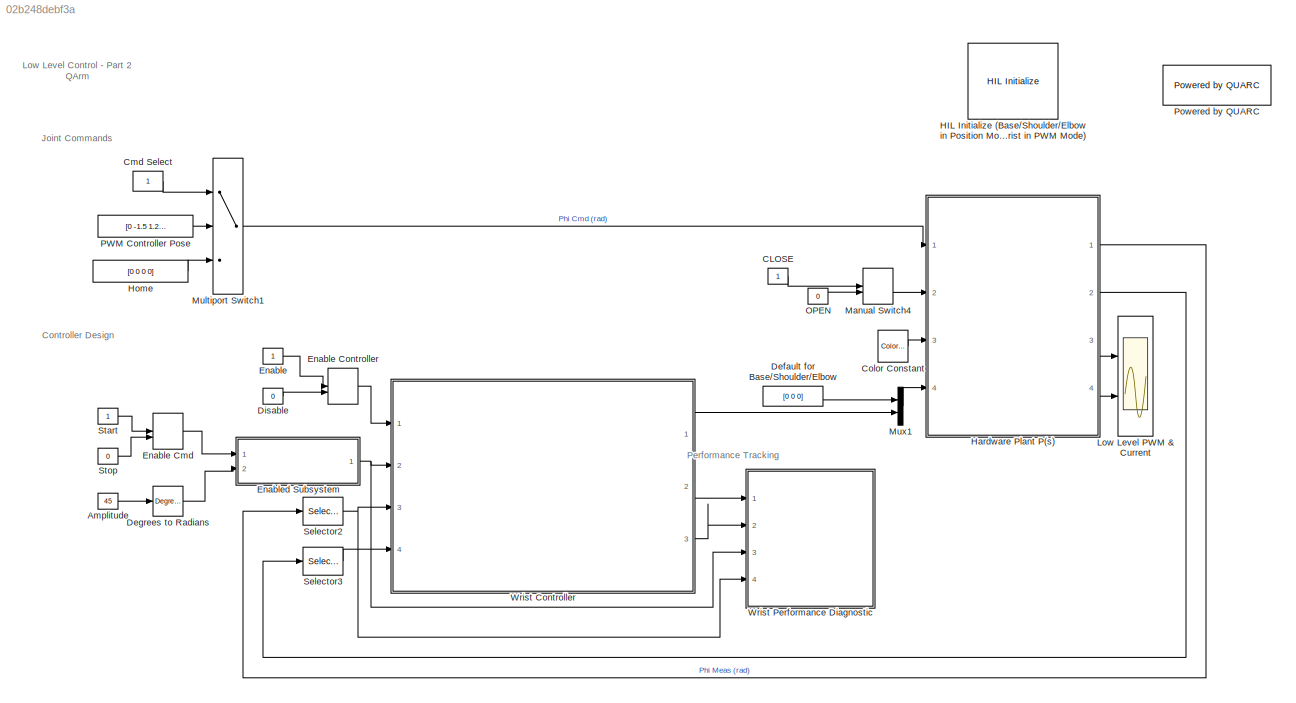
MODEL slx_02b248debf3a
KIND model
CONFIG AbsTol = auto
CONFIG EnableMultiTasking = on
CONFIG FixedStep = 1/500
CONFIG MaxStep = auto
CONFIG MinStep = auto
CONFIG RelTol = 1e-3
CONFIG SampleTimeConstraint = Unconstrained
CONFIG SolverName = ode4
CONFIG StartTime = 0.0
CONFIG StopTime = inf
BLOCK [Constant]  OPEN
  Value = 0
BLOCK [Constant] Amplitude
  Value = 45
BLOCK [Constant] CLOSE 
BLOCK [Constant] Cmd Select
BLOCK [Reference] Color Constant  REF=quarc_library/Sources/Signals/Color Constant
  Ports = [0, 1]
  SourceBlock = quarc_library/Sources/Signals/Color Constant
  SourceProductName = QUARC Targets
  SourceType = Color Constant
BLOCK [Constant] Default for Base//Shoulder//Elbow
  NameLocation = top
  Value = [0 0 0]
BLOCK [Reference] Degrees to Radians  REF=simulink_extras/Transformations/Degrees to
Radians
  Ports = [1, 1]
  SourceBlock = simulink_extras/Transformations/Degrees to\nRadians
  SourceType = DegreesToRadians
BLOCK [Constant] Disable
  Value = 0
BLOCK [Constant] Enable 
BLOCK [ManualSwitch] Enable Cmd
BLOCK [ManualSwitch] Enable Controller
  NameLocation = top
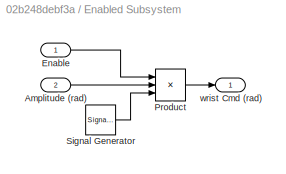
BLOCK [SubSystem] Enabled Subsystem
  Ports = [2, 1]
  TreatAsAtomicUnit = on
BLOCK [Inport] Enabled Subsystem/Amplitude (rad)
  Port = 2
BLOCK [Inport] Enabled Subsystem/Enable
BLOCK [Product] Enabled Subsystem/Product
  Inputs = 3
  Ports = [3, 1]
BLOCK [SignalGenerator] Enabled Subsystem/Signal Generator
  Frequency = 1/10
  Ports = [0, 1]
  WaveForm = square
BLOCK [Outport] Enabled Subsystem/wrist Cmd (rad)
BLOCK [Reference] HIL Initialize (Base//Shoulder//Elbow in Position Mode Wrist in PWM Mode)  REF=quarc_library/Data Acquisition/Generic/Configuration/HIL Initialize
  AttributesFormatString = %<object_name> (%<board_type>-%<board_number>)
  Ports = []
  SourceBlock = quarc_library/Data Acquisition/Generic/Configuration/HIL Initialize
  SourceProductName = QUARC Targets
  SourceType = HIL Initialize
  UserDataPersistent = on
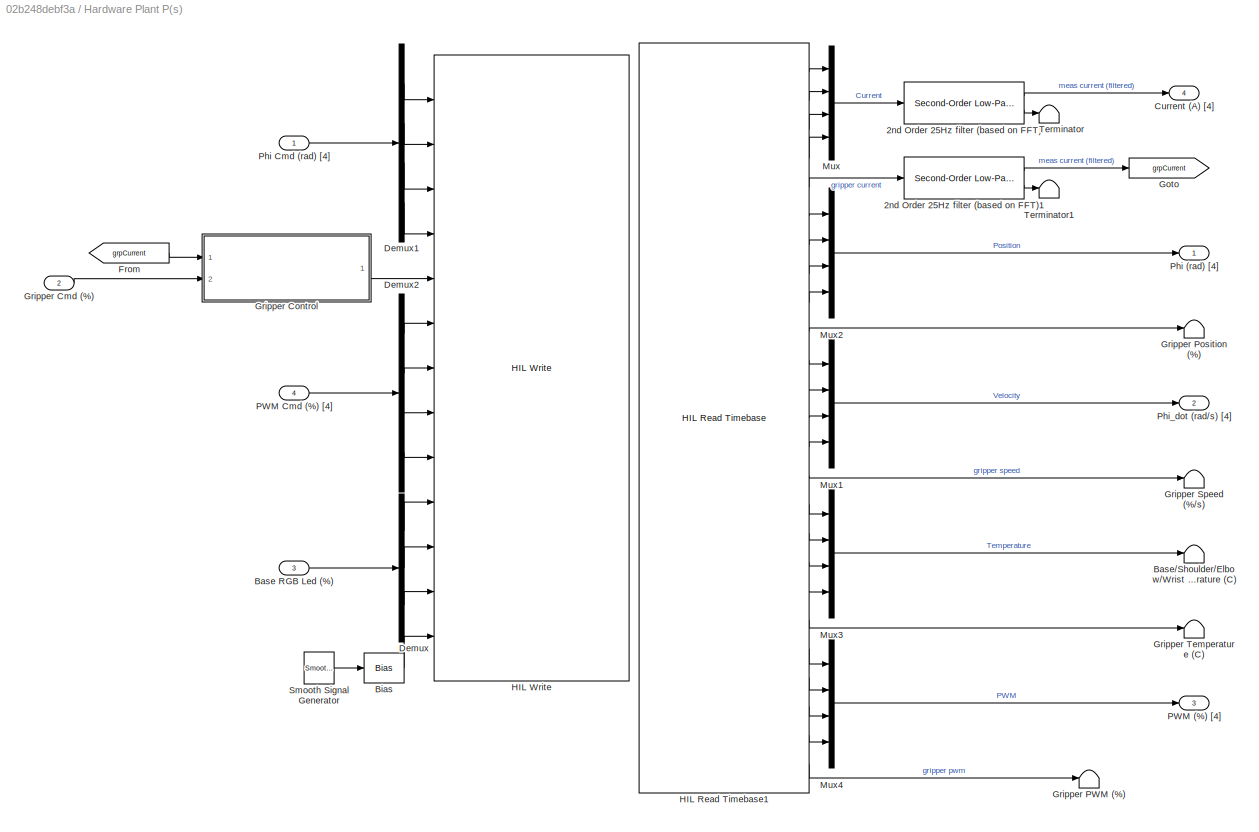
BLOCK [SubSystem] Hardware Plant P(s)
  Permissions = NoReadOrWrite
  Ports = [4, 4]
BLOCK [Reference] Hardware Plant P(s)/2nd Order 25Hz filter (based on FFT)  REF=quarc_library/Continuous/Second-Order
Low-Pass Filter
  Ports = [1, 2]
  SourceBlock = quarc_library/Continuous/Second-Order\nLow-Pass Filter
  SourceProductName = QUARC Targets
  SourceType = Second-Order Low-Pass Filter
BLOCK [Reference] Hardware Plant P(s)/2nd Order 25Hz filter (based on FFT)1  REF=quarc_library/Continuous/Second-Order
Low-Pass Filter
  Ports = [1, 2]
  SourceBlock = quarc_library/Continuous/Second-Order\nLow-Pass Filter
  SourceProductName = QUARC Targets
  SourceType = Second-Order Low-Pass Filter
BLOCK [Inport] Hardware Plant P(s)/Base RGB Led (%)
  Port = 3
BLOCK [Terminator] Hardware Plant P(s)/Base//Shoulder//Elbow//Wrist Temperature (C)
BLOCK [Bias] Hardware Plant P(s)/Bias
  Bias = 0.5
  SaturateOnIntegerOverflow = off
BLOCK [Outport] Hardware Plant P(s)/Current (A) [4]
  NameLocation = top
  Port = 4
  VectorParamsAs1DForOutWhenUnconnected = off
BLOCK [Demux] Hardware Plant P(s)/Demux
  Outputs = 3
  Ports = [1, 3]
BLOCK [Demux] Hardware Plant P(s)/Demux1
  Ports = [1, 4]
BLOCK [Demux] Hardware Plant P(s)/Demux2
  Ports = [1, 4]
BLOCK [From] Hardware Plant P(s)/From
  GotoTag = grpCurrent
BLOCK [Goto] Hardware Plant P(s)/Goto
  GotoTag = grpCurrent
BLOCK [Inport] Hardware Plant P(s)/Gripper Cmd (%)
  Port = 2
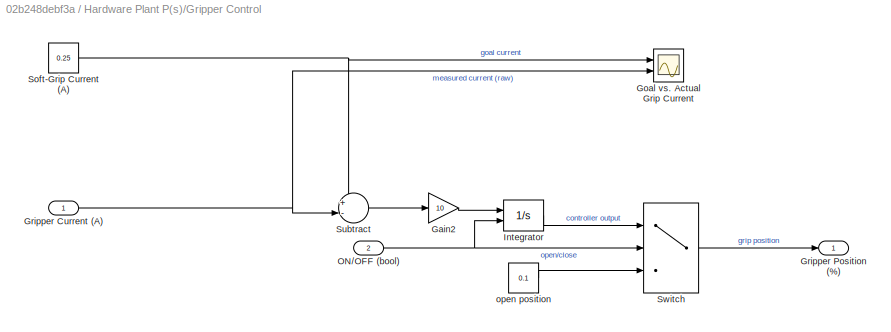
BLOCK [SubSystem] Hardware Plant P(s)/Gripper Control
  Ports = [2, 1]
BLOCK [Gain] Hardware Plant P(s)/Gripper Control/Gain2
  Gain = 10
BLOCK [Scope] Hardware Plant P(s)/Gripper Control/Goal vs. Actual Grip Current
  Floating = off
  NameLocation = top
  NumInputPorts = 2
  Ports = [2]
  ScopeSpecificationString = Simulink.scopes.TimeScopeBlockCfg('CurrentConfiguration', extmgr.ConfigurationSet(extmgr.Configuration('Core','General UI',true),extmgr.Configuration('Core','Source UI',true),extmgr.Configuration('Sources','WiredSimulink',true,'DataLoggingVariableName','ScopeData4'),extmgr.Configuration('Visuals','Time Domain',true,'SerializedDisplays',{struct('MinYLimReal','0.00229','MaxYLimReal','0.27702','YLabe...<+1463ch>
BLOCK [Inport] Hardware Plant P(s)/Gripper Control/Gripper Current (A)
BLOCK [Outport] Hardware Plant P(s)/Gripper Control/Gripper Position (%)
  VectorParamsAs1DForOutWhenUnconnected = off
BLOCK [Integrator] Hardware Plant P(s)/Gripper Control/Integrator
  ExternalReset = either
  InitialCondition = 0.1
  LimitOutput = on
  LowerSaturationLimit = 0.1
  Ports = [2, 1]
  UpperSaturationLimit = 0.9
BLOCK [Inport] Hardware Plant P(s)/Gripper Control/ON//OFF (bool)
  Port = 2
BLOCK [Constant] Hardware Plant P(s)/Gripper Control/Soft-Grip Current (A)
  Value = 0.25
BLOCK [Sum] Hardware Plant P(s)/Gripper Control/Subtract
  Inputs = +-|
  Ports = [2, 1]
BLOCK [Switch] Hardware Plant P(s)/Gripper Control/Switch
  Criteria = u2 > Threshold
  InputSameDT = off
  SaturateOnIntegerOverflow = off
BLOCK [Constant] Hardware Plant P(s)/Gripper Control/open position
  Value = 0.1
BLOCK [Terminator] Hardware Plant P(s)/Gripper PWM (%)
BLOCK [Terminator] Hardware Plant P(s)/Gripper Position (%)
BLOCK [Terminator] Hardware Plant P(s)/Gripper Speed (%//s)
BLOCK [Terminator] Hardware Plant P(s)/Gripper Temperature (C)
BLOCK [Reference] Hardware Plant P(s)/HIL Read Timebase1  REF=quarc_library/Data Acquisition/Generic/Timebases/HIL Read
Timebase
  AttributesFormatString = (%<object_name>)
  Ports = [0, 25]
  SourceBlock = quarc_library/Data Acquisition/Generic/Timebases/HIL Read\nTimebase
  SourceProductName = QUARC Targets
  SourceType = HIL Read Timebase
  UserDataPersistent = on
BLOCK [Reference] Hardware Plant P(s)/HIL Write  REF=quarc_library/Data Acquisition/Generic/Immediate I//O/HIL Write
  AttributesFormatString = (%<object_name>)
  Ports = [13]
  SourceBlock = quarc_library/Data Acquisition/Generic/Immediate I//O/HIL Write
  SourceProductName = QUARC Targets
  SourceType = HIL Write
  UserDataPersistent = on
BLOCK [Mux] Hardware Plant P(s)/Mux
  DisplayOption = bar
  Ports = [4, 1]
BLOCK [Mux] Hardware Plant P(s)/Mux1
  DisplayOption = bar
  Ports = [4, 1]
BLOCK [Mux] Hardware Plant P(s)/Mux2
  DisplayOption = bar
  Ports = [4, 1]
BLOCK [Mux] Hardware Plant P(s)/Mux3
  DisplayOption = bar
  Ports = [4, 1]
BLOCK [Mux] Hardware Plant P(s)/Mux4
  DisplayOption = bar
  Ports = [4, 1]
BLOCK [Outport] Hardware Plant P(s)/PWM (%) [4]
  Port = 3
  VectorParamsAs1DForOutWhenUnconnected = off
BLOCK [Inport] Hardware Plant P(s)/PWM Cmd (%) [4]
  Port = 4
BLOCK [Outport] Hardware Plant P(s)/Phi (rad) [4]
  VectorParamsAs1DForOutWhenUnconnected = off
BLOCK [Inport] Hardware Plant P(s)/Phi Cmd (rad) [4]
BLOCK [Outport] Hardware Plant P(s)/Phi_dot (rad//s) [4]
  Port = 2
  VectorParamsAs1DForOutWhenUnconnected = off
BLOCK [Reference] Hardware Plant P(s)/Smooth Signal Generator  REF=quarc_library/Sources/Signals/Smooth Signal
Generator
  Ports = [0, 1]
  SourceBlock = quarc_library/Sources/Signals/Smooth Signal\nGenerator
  SourceProductName = QUARC Targets
  SourceType = Smooth Signal Generator
BLOCK [Terminator] Hardware Plant P(s)/Terminator
BLOCK [Terminator] Hardware Plant P(s)/Terminator1
BLOCK [Constant] Home
  Value = [0 0 0 0]
BLOCK [Scope] Low Level PWM & Current
  Floating = off
  NumInputPorts = 2
  Ports = [2]
  ScopeSpecificationString = Simulink.scopes.TimeScopeBlockCfg('CurrentConfiguration', extmgr.ConfigurationSet(extmgr.Configuration('Core','General UI',true),extmgr.Configuration('Core','Source UI',true),extmgr.Configuration('Sources','WiredSimulink',true,'DataLoggingVariableName','ScopeData1'),extmgr.Configuration('Visuals','Time Domain',true,'SerializedDisplays',{struct('MinYLimReal','-1.1','MaxYLimReal','1.1','YLabelReal',...<+2139ch>
BLOCK [ManualSwitch] Manual Switch4
  CurrentSetting = 0
BLOCK [MultiPortSwitch] Multiport Switch1
  InputSameDT = off
  Inputs = 2
  Ports = [3, 1]
  SaturateOnIntegerOverflow = off
BLOCK [Mux] Mux1
  DisplayOption = bar
  Inputs = 2
  Ports = [2, 1]
BLOCK [Constant] PWM Controller Pose
  Value = [0 -1.5 1.2 0]
BLOCK [Reference] Powered by QUARC  REF=quarc_library/Logos/Powered by QUARC
  Ports = []
  SourceBlock = quarc_library/Logos/Powered by QUARC
  SourceProductName = QUARC Targets
  SourceType = Powered by QUARC
BLOCK [Selector] Selector2
  IndexOptions = Index vector (dialog)
  Indices = 4
  InputPortWidth = 4
  OutputSizes = 1
  Ports = [1, 1]
BLOCK [Selector] Selector3
  IndexOptions = Index vector (dialog)
  Indices = 4
  InputPortWidth = 4
  OutputSizes = 1
  Ports = [1, 1]
BLOCK [Constant] Start
BLOCK [Constant] Stop
  Value = 0
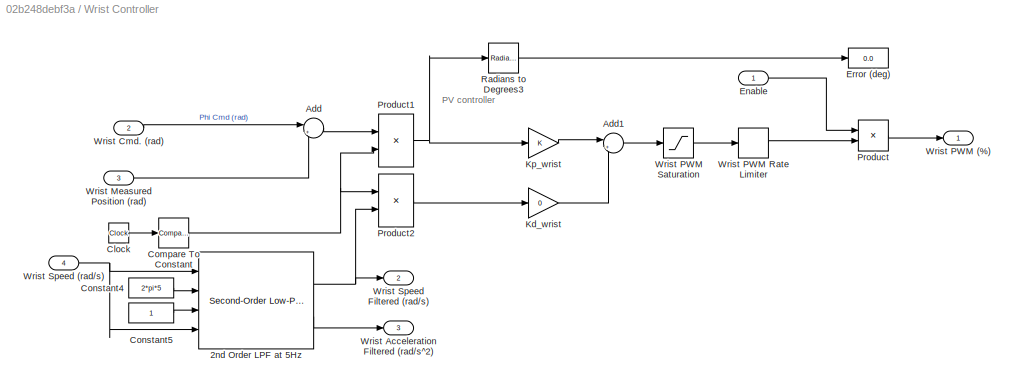
BLOCK [SubSystem] Wrist Controller
  Ports = [4, 3]
BLOCK [Reference] Wrist Controller/2nd Order LPF at 5Hz   REF=quarc_library/Continuous/Second-Order
Low-Pass Filter
  Ports = [4, 2]
  SourceBlock = quarc_library/Continuous/Second-Order\nLow-Pass Filter
  SourceProductName = QUARC Targets
  SourceType = Second-Order Low-Pass Filter
BLOCK [Sum] Wrist Controller/Add
  Inputs = |+-
  Ports = [2, 1]
BLOCK [Sum] Wrist Controller/Add1
  Inputs = |+-
  Ports = [2, 1]
BLOCK [Clock] Wrist Controller/Clock
BLOCK [Reference] Wrist Controller/Compare To Constant  REF=simulink/Logic and Bit
Operations/Compare
To Constant
  Ports = [1, 1]
  SourceBlock = simulink/Logic and Bit\nOperations/Compare\nTo Constant
  SourceType = Compare To Constant
BLOCK [Constant] Wrist Controller/Constant4
  Value = 2*pi*5
BLOCK [Constant] Wrist Controller/Constant5
BLOCK [Inport] Wrist Controller/Enable
BLOCK [Display] Wrist Controller/Error (deg)
  Decimation = 1
  Format = bank
  NameLocation = top
  Ports = [1]
BLOCK [Gain] Wrist Controller/Kd_wrist
  Gain = 0
BLOCK [Gain] Wrist Controller/Kp_wrist
BLOCK [Product] Wrist Controller/Product
  Ports = [2, 1]
BLOCK [Product] Wrist Controller/Product1
  Ports = [2, 1]
BLOCK [Product] Wrist Controller/Product2
  Ports = [2, 1]
BLOCK [Reference] Wrist Controller/Radians to Degrees3  REF=simulink_extras/Transformations/Radians
to Degrees
  Ports = [1, 1]
  SourceBlock = simulink_extras/Transformations/Radians\nto Degrees
  SourceType = RadiansToDegrees
BLOCK [Inport] Wrist Controller/Wrist  Measured Position (rad)
  Port = 3
BLOCK [Outport] Wrist Controller/Wrist Acceleration Filtered (rad//s^2)
  Port = 3
BLOCK [Inport] Wrist Controller/Wrist Cmd. (rad)
  Port = 2
BLOCK [Outport] Wrist Controller/Wrist PWM (%)
  VectorParamsAs1DForOutWhenUnconnected = off
BLOCK [RateLimiter] Wrist Controller/Wrist PWM Rate Limiter
  FallingSlewLimit = -0.2
  RisingSlewLimit = 0.2
  SampleTimeMode = inherited
BLOCK [Saturate] Wrist Controller/Wrist PWM Saturation
  LowerLimit = -0.325
  UpperLimit = 0.325
BLOCK [Inport] Wrist Controller/Wrist Speed (rad//s)
  Port = 4
BLOCK [Outport] Wrist Controller/Wrist Speed Filtered (rad//s)
  Port = 2
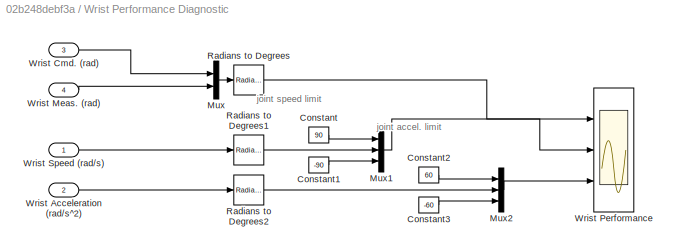
BLOCK [SubSystem] Wrist Performance Diagnostic
  Ports = [4]
BLOCK [Constant] Wrist Performance Diagnostic/Constant
  NameLocation = top
  Value = 90
BLOCK [Constant] Wrist Performance Diagnostic/Constant1
  Value = -90
BLOCK [Constant] Wrist Performance Diagnostic/Constant2
  Value = 60
BLOCK [Constant] Wrist Performance Diagnostic/Constant3
  Value = -60
BLOCK [Mux] Wrist Performance Diagnostic/Mux
  DisplayOption = bar
  Inputs = 2
  Ports = [2, 1]
BLOCK [Mux] Wrist Performance Diagnostic/Mux1
  DisplayOption = bar
  Inputs = 3
  Ports = [3, 1]
BLOCK [Mux] Wrist Performance Diagnostic/Mux2
  DisplayOption = bar
  Inputs = 3
  Ports = [3, 1]
BLOCK [Reference] Wrist Performance Diagnostic/Radians to Degrees  REF=simulink_extras/Transformations/Radians
to Degrees
  Ports = [1, 1]
  SourceBlock = simulink_extras/Transformations/Radians\nto Degrees
  SourceType = RadiansToDegrees
BLOCK [Reference] Wrist Performance Diagnostic/Radians to Degrees1  REF=simulink_extras/Transformations/Radians
to Degrees
  Ports = [1, 1]
  SourceBlock = simulink_extras/Transformations/Radians\nto Degrees
  SourceType = RadiansToDegrees
BLOCK [Reference] Wrist Performance Diagnostic/Radians to Degrees2  REF=simulink_extras/Transformations/Radians
to Degrees
  Ports = [1, 1]
  SourceBlock = simulink_extras/Transformations/Radians\nto Degrees
  SourceType = RadiansToDegrees
BLOCK [Inport] Wrist Performance Diagnostic/Wrist Acceleration (rad//s^2)
  Port = 2
BLOCK [Inport] Wrist Performance Diagnostic/Wrist Cmd. (rad)
  Port = 3
BLOCK [Inport] Wrist Performance Diagnostic/Wrist Meas. (rad)
  Port = 4
BLOCK [Scope] Wrist Performance Diagnostic/Wrist Performance
  Floating = off
  NumInputPorts = 3
  Ports = [3]
  ScopeSpecificationString = Simulink.scopes.TimeScopeBlockCfg('CurrentConfiguration', extmgr.ConfigurationSet(extmgr.Configuration('Core','General UI',true),extmgr.Configuration('Core','Source UI',true),extmgr.Configuration('Sources','WiredSimulink',true,'DataLoggingVariableName','ScopeData1'),extmgr.Configuration('Visuals','Time Domain',true,'SerializedDisplays',{struct('MinYLimReal','-110.92308','MaxYLimReal','102.92308','...<+3517ch>
BLOCK [Inport] Wrist Performance Diagnostic/Wrist Speed (rad//s)
ANNOTATION (root): Low Level Control - Part 2 QArm
ANNOTATION (root): Controller Design
ANNOTATION (root): Joint Commands
ANNOTATION (root): Performance Tracking
ANNOTATION Wrist Controller: PV controller
ANNOTATION Wrist Performance Diagnostic: joint accel. limit
ANNOTATION Wrist Performance Diagnostic: joint speed limit
LINE  OPEN:1 -> Manual Switch4:2
LINE Amplitude:1 -> Degrees to Radians:1
LINE CLOSE :1 -> Manual Switch4:1
LINE Cmd Select:1 -> Multiport Switch1:1
LINE Color Constant:1 -> Hardware Plant P(s):3
LINE Default for Base//Shoulder//Elbow:1 -> Mux1:1
LINE Degrees to Radians:1 -> Enabled Subsystem:2
LINE Disable:1 -> Enable Controller:2
LINE Enable :1 -> Enable Controller:1
LINE Enable Cmd:1 -> Enabled Subsystem:1
LINE Enable Controller:1 -> Wrist Controller:1
LINE Enabled Subsystem/Amplitude (rad):1 -> Enabled Subsystem/Product:2
LINE Enabled Subsystem/Enable:1 -> Enabled Subsystem/Product:1
LINE Enabled Subsystem/Product:1 -> Enabled Subsystem/wrist Cmd (rad):1
LINE Enabled Subsystem/Signal Generator:1 -> Enabled Subsystem/Product:3
NET Enabled Subsystem:1 -> Wrist Controller:2, Wrist Performance Diagnostic:3
LINE Hardware Plant P(s)/2nd Order 25Hz filter (based on FFT)1:1 -> Hardware Plant P(s)/Goto:1
LINE Hardware Plant P(s)/2nd Order 25Hz filter (based on FFT)1:2 -> Hardware Plant P(s)/Terminator1:1
LINE Hardware Plant P(s)/2nd Order 25Hz filter (based on FFT):1 -> Hardware Plant P(s)/Current (A) [4]:1
LINE Hardware Plant P(s)/2nd Order 25Hz filter (based on FFT):2 -> Hardware Plant P(s)/Terminator:1
LINE Hardware Plant P(s)/Base RGB Led (%):1 -> Hardware Plant P(s)/Demux:1
LINE Hardware Plant P(s)/Bias:1 -> Hardware Plant P(s)/HIL Write:13
LINE Hardware Plant P(s)/Demux1:1 -> Hardware Plant P(s)/HIL Write:1
LINE Hardware Plant P(s)/Demux1:2 -> Hardware Plant P(s)/HIL Write:2
LINE Hardware Plant P(s)/Demux1:3 -> Hardware Plant P(s)/HIL Write:3
LINE Hardware Plant P(s)/Demux1:4 -> Hardware Plant P(s)/HIL Write:4
LINE Hardware Plant P(s)/Demux2:1 -> Hardware Plant P(s)/HIL Write:6
LINE Hardware Plant P(s)/Demux2:2 -> Hardware Plant P(s)/HIL Write:7
LINE Hardware Plant P(s)/Demux2:3 -> Hardware Plant P(s)/HIL Write:8
LINE Hardware Plant P(s)/Demux2:4 -> Hardware Plant P(s)/HIL Write:9
LINE Hardware Plant P(s)/Demux:1 -> Hardware Plant P(s)/HIL Write:10
LINE Hardware Plant P(s)/Demux:2 -> Hardware Plant P(s)/HIL Write:11
LINE Hardware Plant P(s)/Demux:3 -> Hardware Plant P(s)/HIL Write:12
LINE Hardware Plant P(s)/From:1 -> Hardware Plant P(s)/Gripper Control:1
LINE Hardware Plant P(s)/Gripper Cmd (%):1 -> Hardware Plant P(s)/Gripper Control:2
LINE Hardware Plant P(s)/Gripper Control/Gain2:1 -> Hardware Plant P(s)/Gripper Control/Integrator:1
NET Hardware Plant P(s)/Gripper Control/Gripper Current (A):1 -> Hardware Plant P(s)/Gripper Control/Goal vs. Actual Grip Current:2, Hardware Plant P(s)/Gripper Control/Subtract:2
LINE Hardware Plant P(s)/Gripper Control/Integrator:1 -> Hardware Plant P(s)/Gripper Control/Switch:1
NET Hardware Plant P(s)/Gripper Control/ON//OFF (bool):1 -> Hardware Plant P(s)/Gripper Control/Integrator:2, Hardware Plant P(s)/Gripper Control/Switch:2
NET Hardware Plant P(s)/Gripper Control/Soft-Grip Current (A):1 -> Hardware Plant P(s)/Gripper Control/Goal vs. Actual Grip Current:1, Hardware Plant P(s)/Gripper Control/Subtract:1
LINE Hardware Plant P(s)/Gripper Control/Subtract:1 -> Hardware Plant P(s)/Gripper Control/Gain2:1
LINE Hardware Plant P(s)/Gripper Control/Switch:1 -> Hardware Plant P(s)/Gripper Control/Gripper Position (%):1
LINE Hardware Plant P(s)/Gripper Control/open position:1 -> Hardware Plant P(s)/Gripper Control/Switch:3
LINE Hardware Plant P(s)/Gripper Control:1 -> Hardware Plant P(s)/HIL Write:5
LINE Hardware Plant P(s)/HIL Read Timebase1:1 -> Hardware Plant P(s)/Mux:1
LINE Hardware Plant P(s)/HIL Read Timebase1:10 -> Hardware Plant P(s)/Gripper Position (%):1
LINE Hardware Plant P(s)/HIL Read Timebase1:11 -> Hardware Plant P(s)/Mux1:1
LINE Hardware Plant P(s)/HIL Read Timebase1:12 -> Hardware Plant P(s)/Mux1:2
LINE Hardware Plant P(s)/HIL Read Timebase1:13 -> Hardware Plant P(s)/Mux1:3
LINE Hardware Plant P(s)/HIL Read Timebase1:14 -> Hardware Plant P(s)/Mux1:4
LINE Hardware Plant P(s)/HIL Read Timebase1:15 -> Hardware Plant P(s)/Gripper Speed (%//s):1
LINE Hardware Plant P(s)/HIL Read Timebase1:16 -> Hardware Plant P(s)/Mux3:1
LINE Hardware Plant P(s)/HIL Read Timebase1:17 -> Hardware Plant P(s)/Mux3:2
LINE Hardware Plant P(s)/HIL Read Timebase1:18 -> Hardware Plant P(s)/Mux3:3
LINE Hardware Plant P(s)/HIL Read Timebase1:19 -> Hardware Plant P(s)/Mux3:4
LINE Hardware Plant P(s)/HIL Read Timebase1:2 -> Hardware Plant P(s)/Mux:2
LINE Hardware Plant P(s)/HIL Read Timebase1:20 -> Hardware Plant P(s)/Gripper Temperature (C):1
LINE Hardware Plant P(s)/HIL Read Timebase1:21 -> Hardware Plant P(s)/Mux4:1
LINE Hardware Plant P(s)/HIL Read Timebase1:22 -> Hardware Plant P(s)/Mux4:2
LINE Hardware Plant P(s)/HIL Read Timebase1:23 -> Hardware Plant P(s)/Mux4:3
LINE Hardware Plant P(s)/HIL Read Timebase1:24 -> Hardware Plant P(s)/Mux4:4
LINE Hardware Plant P(s)/HIL Read Timebase1:25 -> Hardware Plant P(s)/Gripper PWM (%):1
LINE Hardware Plant P(s)/HIL Read Timebase1:3 -> Hardware Plant P(s)/Mux:3
LINE Hardware Plant P(s)/HIL Read Timebase1:4 -> Hardware Plant P(s)/Mux:4
LINE Hardware Plant P(s)/HIL Read Timebase1:5 -> Hardware Plant P(s)/2nd Order 25Hz filter (based on FFT)1:1
LINE Hardware Plant P(s)/HIL Read Timebase1:6 -> Hardware Plant P(s)/Mux2:1
LINE Hardware Plant P(s)/HIL Read Timebase1:7 -> Hardware Plant P(s)/Mux2:2
LINE Hardware Plant P(s)/HIL Read Timebase1:8 -> Hardware Plant P(s)/Mux2:3
LINE Hardware Plant P(s)/HIL Read Timebase1:9 -> Hardware Plant P(s)/Mux2:4
LINE Hardware Plant P(s)/Mux1:1 -> Hardware Plant P(s)/Phi_dot (rad//s) [4]:1
LINE Hardware Plant P(s)/Mux2:1 -> Hardware Plant P(s)/Phi (rad) [4]:1
LINE Hardware Plant P(s)/Mux3:1 -> Hardware Plant P(s)/Base//Shoulder//Elbow//Wrist Temperature (C):1
LINE Hardware Plant P(s)/Mux4:1 -> Hardware Plant P(s)/PWM (%) [4]:1
LINE Hardware Plant P(s)/Mux:1 -> Hardware Plant P(s)/2nd Order 25Hz filter (based on FFT):1
LINE Hardware Plant P(s)/PWM Cmd (%) [4]:1 -> Hardware Plant P(s)/Demux2:1
LINE Hardware Plant P(s)/Phi Cmd (rad) [4]:1 -> Hardware Plant P(s)/Demux1:1
LINE Hardware Plant P(s)/Smooth Signal Generator:1 -> Hardware Plant P(s)/Bias:1
LINE Hardware Plant P(s):1 -> Selector2:1
LINE Hardware Plant P(s):2 -> Selector3:1
LINE Hardware Plant P(s):3 -> Low Level PWM & Current:1
LINE Hardware Plant P(s):4 -> Low Level PWM & Current:2
LINE Home:1 -> Multiport Switch1:3
LINE Manual Switch4:1 -> Hardware Plant P(s):2
LINE Multiport Switch1:1 -> Hardware Plant P(s):1
LINE Mux1:1 -> Hardware Plant P(s):4
LINE PWM Controller Pose:1 -> Multiport Switch1:2
NET Selector2:1 -> Wrist Controller:3, Wrist Performance Diagnostic:4
LINE Selector3:1 -> Wrist Controller:4
LINE Start:1 -> Enable Cmd:1
LINE Stop:1 -> Enable Cmd:2
NET Wrist Controller/2nd Order LPF at 5Hz :1 -> Wrist Controller/Product2:2, Wrist Controller/Wrist Speed Filtered (rad//s):1
LINE Wrist Controller/2nd Order LPF at 5Hz :2 -> Wrist Controller/Wrist Acceleration Filtered (rad//s^2):1
LINE Wrist Controller/Add1:1 -> Wrist Controller/Wrist PWM Saturation:1
LINE Wrist Controller/Add:1 -> Wrist Controller/Product1:1
LINE Wrist Controller/Clock:1 -> Wrist Controller/Compare To Constant:1
NET Wrist Controller/Compare To Constant:1 -> Wrist Controller/Product1:2, Wrist Controller/Product2:1
LINE Wrist Controller/Constant4:1 -> Wrist Controller/2nd Order LPF at 5Hz :2
LINE Wrist Controller/Constant5:1 -> Wrist Controller/2nd Order LPF at 5Hz :3
LINE Wrist Controller/Enable:1 -> Wrist Controller/Product:1
LINE Wrist Controller/Kd_wrist:1 -> Wrist Controller/Add1:2
LINE Wrist Controller/Kp_wrist:1 -> Wrist Controller/Add1:1
NET Wrist Controller/Product1:1 -> Wrist Controller/Kp_wrist:1, Wrist Controller/Radians to Degrees3:1
LINE Wrist Controller/Product2:1 -> Wrist Controller/Kd_wrist:1
LINE Wrist Controller/Product:1 -> Wrist Controller/Wrist PWM (%):1
LINE Wrist Controller/Radians to Degrees3:1 -> Wrist Controller/Error (deg):1
LINE Wrist Controller/Wrist  Measured Position (rad):1 -> Wrist Controller/Add:2
LINE Wrist Controller/Wrist Cmd. (rad):1 -> Wrist Controller/Add:1
LINE Wrist Controller/Wrist PWM Rate Limiter:1 -> Wrist Controller/Product:2
LINE Wrist Controller/Wrist PWM Saturation:1 -> Wrist Controller/Wrist PWM Rate Limiter:1
NET Wrist Controller/Wrist Speed (rad//s):1 -> Wrist Controller/2nd Order LPF at 5Hz :1, Wrist Controller/2nd Order LPF at 5Hz :4
LINE Wrist Controller:1 -> Mux1:2
LINE Wrist Controller:2 -> Wrist Performance Diagnostic:1
LINE Wrist Controller:3 -> Wrist Performance Diagnostic:2
LINE Wrist Performance Diagnostic/Constant1:1 -> Wrist Performance Diagnostic/Mux1:3
LINE Wrist Performance Diagnostic/Constant2:1 -> Wrist Performance Diagnostic/Mux2:1
LINE Wrist Performance Diagnostic/Constant3:1 -> Wrist Performance Diagnostic/Mux2:3
LINE Wrist Performance Diagnostic/Constant:1 -> Wrist Performance Diagnostic/Mux1:1
LINE Wrist Performance Diagnostic/Mux1:1 -> Wrist Performance Diagnostic/Wrist Performance:2
LINE Wrist Performance Diagnostic/Mux2:1 -> Wrist Performance Diagnostic/Wrist Performance:3
LINE Wrist Performance Diagnostic/Mux:1 -> Wrist Performance Diagnostic/Radians to Degrees:1
LINE Wrist Performance Diagnostic/Radians to Degrees1:1 -> Wrist Performance Diagnostic/Mux1:2
LINE Wrist Performance Diagnostic/Radians to Degrees2:1 -> Wrist Performance Diagnostic/Mux2:2
LINE Wrist Performance Diagnostic/Radians to Degrees:1 -> Wrist Performance Diagnostic/Wrist Performance:1
LINE Wrist Performance Diagnostic/Wrist Acceleration (rad//s^2):1 -> Wrist Performance Diagnostic/Radians to Degrees2:1
LINE Wrist Performance Diagnostic/Wrist Cmd. (rad):1 -> Wrist Performance Diagnostic/Mux:1
LINE Wrist Performance Diagnostic/Wrist Meas. (rad):1 -> Wrist Performance Diagnostic/Mux:2
LINE Wrist Performance Diagnostic/Wrist Speed (rad//s):1 -> Wrist Performance Diagnostic/Radians to Degrees1:1
note: NET lines group one-source signal fan-out (src -> all destinations, sorted); 1:1 wires keep LINE
